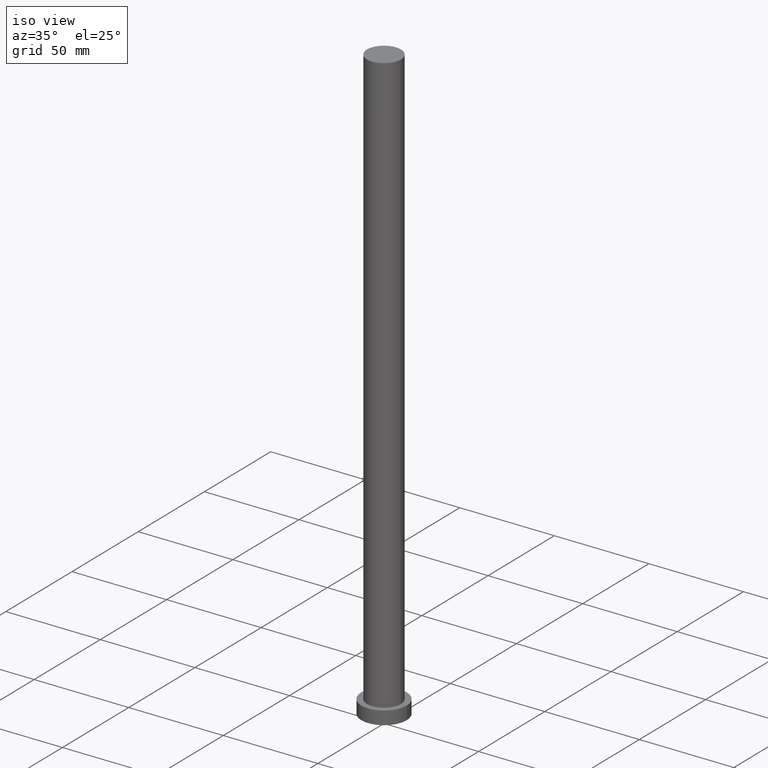
[diagram: clean part render]
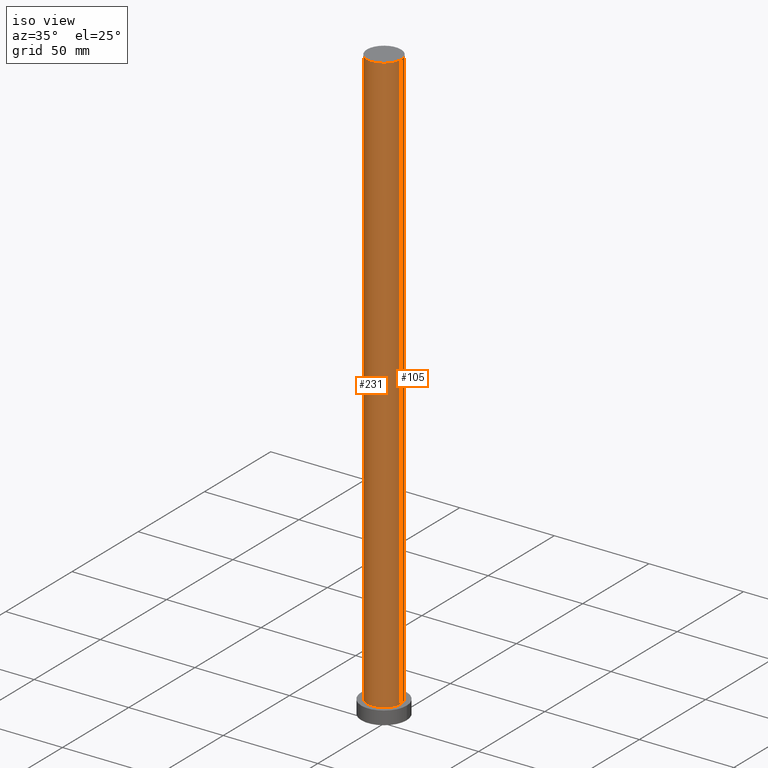
[diagram: same view with one multi-face feature highlighted, each face labeled with its STEP entity id]
A machine part, iso view. The highlighted faces form ONE feature: a constant-radius fillet chain: 2 tangent blend faces with common blend radius 9 mm. The faces share edges in the B-rep.
Their STEP definitions:
[1] entity #231 (Cylinder):
#11 = EDGE_CURVE ( 'NONE', #82, #204, #241, .T. ) ;
#14 = DIRECTION ( 'NONE',  ( -0.000000000000000000, -0.000000000000000000, -1.000000000000000000 ) ) ;
#24 = EDGE_LOOP ( 'NONE', ( #101, #122, #185, #166 ) ) ;
#27 = CIRCLE ( 'NONE', #33, 9.000000000000000000 ) ;
#29 = CARTESIAN_POINT ( 'NONE',  ( -9.000000000000000000, 0.000000000000000000, 7.000000000000000000 ) ) ;
#30 = CYLINDRICAL_SURFACE ( 'NONE', #174, 9.000000000000000000 ) ;
#33 = AXIS2_PLACEMENT_3D ( 'NONE', #213, #252, #69 ) ;
#50 = CARTESIAN_POINT ( 'NONE',  ( 9.000000000000000000, 1.102182119232617714E-15, 315.0000000000000000 ) ) ;
#69 = DIRECTION ( 'NONE',  ( 1.000000000000000000, 0.000000000000000000, 0.000000000000000000 ) ) ;
#73 = CARTESIAN_POINT ( 'NONE',  ( -9.000000000000000000, 0.000000000000000000, 315.0000000000000000 ) ) ;
#82 = VERTEX_POINT ( 'NONE', #29 ) ;
#84 = VERTEX_POINT ( 'NONE', #50 ) ;
#92 = CARTESIAN_POINT ( 'NONE',  ( 0.000000000000000000, 0.000000000000000000, 315.0000000000000000 ) ) ;
#99 = CARTESIAN_POINT ( 'NONE',  ( 0.000000000000000000, 0.000000000000000000, 7.000000000000000000 ) ) ;
#101 = ORIENTED_EDGE ( 'NONE', *, *, #139, .F. ) ;
#122 = ORIENTED_EDGE ( 'NONE', *, *, #224, .F. ) ;
#139 = EDGE_CURVE ( 'NONE', #84, #204, #212, .T. ) ;
#147 = DIRECTION ( 'NONE',  ( 1.000000000000000000, 0.000000000000000000, 0.000000000000000000 ) ) ;
#153 = DIRECTION ( 'NONE',  ( -1.000000000000000000, 0.000000000000000000, 0.000000000000000000 ) ) ;
#154 = AXIS2_PLACEMENT_3D ( 'NONE', #99, #164, #147 ) ;
#164 = DIRECTION ( 'NONE',  ( 0.000000000000000000, 0.000000000000000000, 1.000000000000000000 ) ) ;
#166 = ORIENTED_EDGE ( 'NONE', *, *, #11, .T. ) ;
#170 = LINE ( 'NONE', #208, #214 ) ;
#174 = AXIS2_PLACEMENT_3D ( 'NONE', #92, #255, #153 ) ;
#185 = ORIENTED_EDGE ( 'NONE', *, *, #196, .T. ) ;
#189 = DIRECTION ( 'NONE',  ( -0.000000000000000000, -0.000000000000000000, -1.000000000000000000 ) ) ;
#192 = CARTESIAN_POINT ( 'NONE',  ( 9.000000000000000000, 1.102182119232617714E-15, 7.000000000000000000 ) ) ;
#194 = VECTOR ( 'NONE', #189, 1000.000000000000000 ) ;
#196 = EDGE_CURVE ( 'NONE', #205, #82, #170, .T. ) ;
#204 = VERTEX_POINT ( 'NONE', #192 ) ;
#205 = VERTEX_POINT ( 'NONE', #73 ) ;
#208 = CARTESIAN_POINT ( 'NONE',  ( -9.000000000000000000, 0.000000000000000000, 315.0000000000000000 ) ) ;
#211 = CARTESIAN_POINT ( 'NONE',  ( 9.000000000000000000, 1.102182119232617714E-15, 315.0000000000000000 ) ) ;
#212 = LINE ( 'NONE', #211, #194 ) ;
#213 = CARTESIAN_POINT ( 'NONE',  ( 0.000000000000000000, 0.000000000000000000, 315.0000000000000000 ) ) ;
#214 = VECTOR ( 'NONE', #14, 1000.000000000000000 ) ;
#224 = EDGE_CURVE ( 'NONE', #205, #84, #27, .T. ) ;
#231 = ADVANCED_FACE ( 'NONE', ( #233 ), #30, .T. ) ;
#233 = FACE_OUTER_BOUND ( 'NONE', #24, .T. ) ;
#241 = CIRCLE ( 'NONE', #154, 9.000000000000000000 ) ;
#252 = DIRECTION ( 'NONE',  ( 0.000000000000000000, 0.000000000000000000, 1.000000000000000000 ) ) ;
#255 = DIRECTION ( 'NONE',  ( -0.000000000000000000, -0.000000000000000000, -1.000000000000000000 ) ) ;
[2] entity #105 (Cylinder):
#14 = DIRECTION ( 'NONE',  ( -0.000000000000000000, -0.000000000000000000, -1.000000000000000000 ) ) ;
#15 = CIRCLE ( 'NONE', #199, 9.000000000000000000 ) ;
#25 = ORIENTED_EDGE ( 'NONE', *, *, #139, .T. ) ;
#29 = CARTESIAN_POINT ( 'NONE',  ( -9.000000000000000000, 0.000000000000000000, 7.000000000000000000 ) ) ;
#31 = FACE_OUTER_BOUND ( 'NONE', #62, .T. ) ;
#47 = DIRECTION ( 'NONE',  ( 1.000000000000000000, 0.000000000000000000, 0.000000000000000000 ) ) ;
#49 = EDGE_CURVE ( 'NONE', #84, #205, #15, .T. ) ;
#50 = CARTESIAN_POINT ( 'NONE',  ( 9.000000000000000000, 1.102182119232617714E-15, 315.0000000000000000 ) ) ;
#62 = EDGE_LOOP ( 'NONE', ( #229, #25, #142, #120 ) ) ;
#73 = CARTESIAN_POINT ( 'NONE',  ( -9.000000000000000000, 0.000000000000000000, 315.0000000000000000 ) ) ;
#74 = AXIS2_PLACEMENT_3D ( 'NONE', #232, #109, #234 ) ;
#81 = CARTESIAN_POINT ( 'NONE',  ( 0.000000000000000000, 0.000000000000000000, 315.0000000000000000 ) ) ;
#82 = VERTEX_POINT ( 'NONE', #29 ) ;
#84 = VERTEX_POINT ( 'NONE', #50 ) ;
#88 = DIRECTION ( 'NONE',  ( 0.000000000000000000, 0.000000000000000000, 1.000000000000000000 ) ) ;
#105 = ADVANCED_FACE ( 'NONE', ( #31 ), #168, .T. ) ;
#106 = EDGE_CURVE ( 'NONE', #204, #82, #202, .T. ) ;
#109 = DIRECTION ( 'NONE',  ( -0.000000000000000000, -0.000000000000000000, -1.000000000000000000 ) ) ;
#120 = ORIENTED_EDGE ( 'NONE', *, *, #196, .F. ) ;
#123 = AXIS2_PLACEMENT_3D ( 'NONE', #190, #88, #248 ) ;
#139 = EDGE_CURVE ( 'NONE', #84, #204, #212, .T. ) ;
#142 = ORIENTED_EDGE ( 'NONE', *, *, #106, .T. ) ;
#165 = DIRECTION ( 'NONE',  ( 0.000000000000000000, 0.000000000000000000, 1.000000000000000000 ) ) ;
#168 = CYLINDRICAL_SURFACE ( 'NONE', #74, 9.000000000000000000 ) ;
#170 = LINE ( 'NONE', #208, #214 ) ;
#189 = DIRECTION ( 'NONE',  ( -0.000000000000000000, -0.000000000000000000, -1.000000000000000000 ) ) ;
#190 = CARTESIAN_POINT ( 'NONE',  ( 0.000000000000000000, 0.000000000000000000, 7.000000000000000000 ) ) ;
#192 = CARTESIAN_POINT ( 'NONE',  ( 9.000000000000000000, 1.102182119232617714E-15, 7.000000000000000000 ) ) ;
#194 = VECTOR ( 'NONE', #189, 1000.000000000000000 ) ;
#196 = EDGE_CURVE ( 'NONE', #205, #82, #170, .T. ) ;
#199 = AXIS2_PLACEMENT_3D ( 'NONE', #81, #165, #47 ) ;
#202 = CIRCLE ( 'NONE', #123, 9.000000000000000000 ) ;
#204 = VERTEX_POINT ( 'NONE', #192 ) ;
#205 = VERTEX_POINT ( 'NONE', #73 ) ;
#208 = CARTESIAN_POINT ( 'NONE',  ( -9.000000000000000000, 0.000000000000000000, 315.0000000000000000 ) ) ;
#211 = CARTESIAN_POINT ( 'NONE',  ( 9.000000000000000000, 1.102182119232617714E-15, 315.0000000000000000 ) ) ;
#212 = LINE ( 'NONE', #211, #194 ) ;
#214 = VECTOR ( 'NONE', #14, 1000.000000000000000 ) ;
#229 = ORIENTED_EDGE ( 'NONE', *, *, #49, .F. ) ;
#232 = CARTESIAN_POINT ( 'NONE',  ( 0.000000000000000000, 0.000000000000000000, 315.0000000000000000 ) ) ;
#234 = DIRECTION ( 'NONE',  ( -1.000000000000000000, 0.000000000000000000, 0.000000000000000000 ) ) ;
#248 = DIRECTION ( 'NONE',  ( 1.000000000000000000, 0.000000000000000000, 0.000000000000000000 ) ) ;